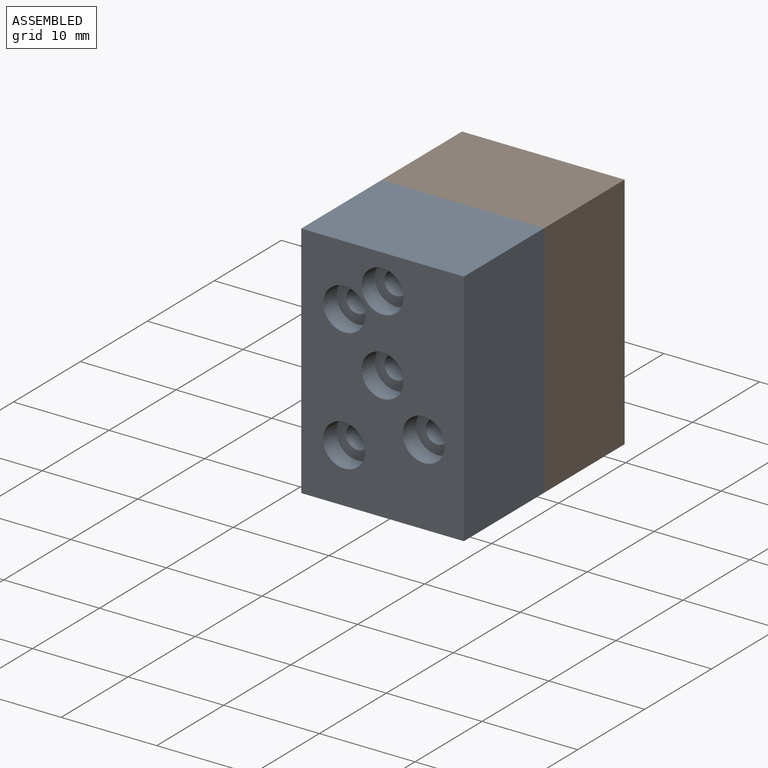
[diagram: assembled view]
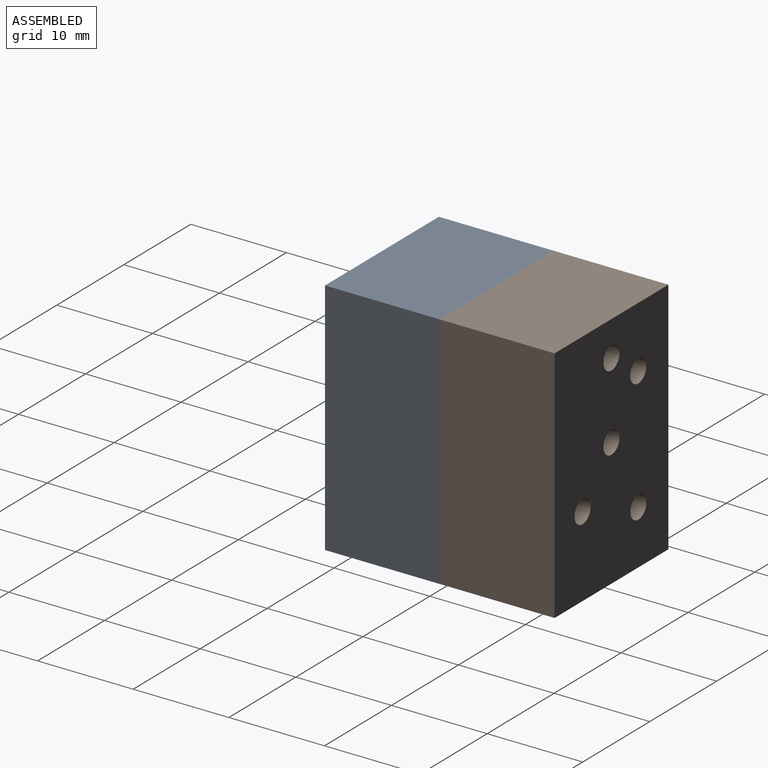
[diagram: assembled view, second angle]
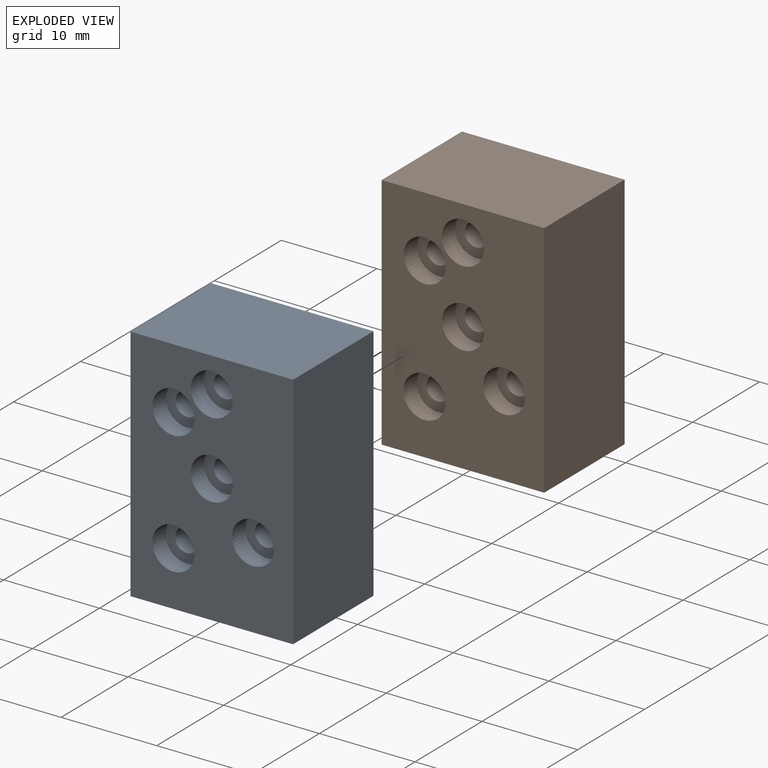
[diagram: exploded view]
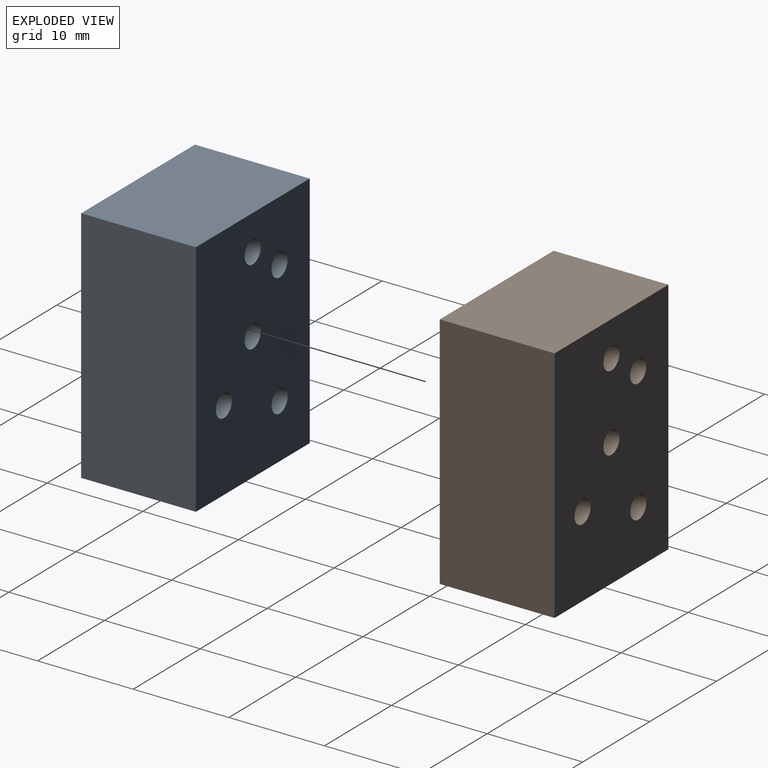
[diagram: exploded view, second angle]
ASSEMBLY  parts=2 mates=2
PART A: 21 faces, bbox 17x12x25 mm
  f0: plane 25x12mm, normal (-1,0,0), area 300mm2, adj f1,f3,f4,f5
  f1: plane 25x17mm, normal (0,-1,0), area 349mm2, adj f0,f2,f4,f5,f8,f11,f14,f17
  f2: plane 25x12mm, normal (1,0,0), area 300mm2, adj f1,f3,f4,f5
  f3: plane 25x17mm, normal (0,1,0), area 402.4mm2, adj f0,f2,f4,f5,f6,f9,f12,f15
  f4: plane 17x12mm, normal (0,0,1), area 204mm2, adj f0,f1,f2,f3
  f5: plane 17x12mm, normal (0,0,-1), area 204mm2, adj f0,f1,f2,f3
  f6: cylinder r=1.2mm len=10mm, axis (0,-1,0), area 75.4mm2, adj f3,f7
  f7: plane 4.4x4.4mm, normal (0,-1,0), area 10.7mm2, adj f6,f8
  f8: cylinder r=2.2mm len=4.4mm, axis (0,-1,0), area 27.6mm2, adj f1,f7
  f9: cylinder r=1.2mm len=10mm, axis (0,-1,0), area 75.4mm2, adj f3,f10
  f10: plane 4.4x4.4mm, normal (0,-1,0), area 10.7mm2, adj f9,f11
  f11: cylinder r=2.2mm len=4.4mm, axis (0,-1,0), area 27.6mm2, adj f1,f10
  f12: cylinder r=1.2mm len=10mm, axis (0,-1,0), area 75.4mm2, adj f3,f13
  f13: plane 4.4x4.4mm, normal (0,-1,0), area 10.7mm2, adj f12,f14
  f14: cylinder r=2.2mm len=4.4mm, axis (0,-1,0), area 27.6mm2, adj f1,f13
  f15: cylinder r=1.2mm len=10mm, axis (0,-1,0), area 75.4mm2, adj f3,f16
  f16: plane 4.4x4.4mm, normal (0,-1,0), area 10.7mm2, adj f15,f17
  f17: cylinder r=2.2mm len=4.4mm, axis (0,-1,0), area 27.6mm2, adj f1,f16
  f18: cylinder r=1.2mm len=10mm, axis (0,-1,0), area 75.4mm2, adj f3,f19
  f19: plane 4.4x4.4mm, normal (0,-1,0), area 10.7mm2, adj f18,f20
  f20: cylinder r=2.2mm len=4.4mm, axis (0,-1,0), area 27.6mm2, adj f1,f19
PART B: same geometry as A
PLACE A t=(0,-12,0)mm
PLACE B at identity fixed
MATE planar A.f3 <-> B.f12  axis (0,1,0) through (0.04,10,12.44)mm
MATE revolute A.f9 <-> B.f9  axis (0,1,0) through (0,10,21.34)mm
